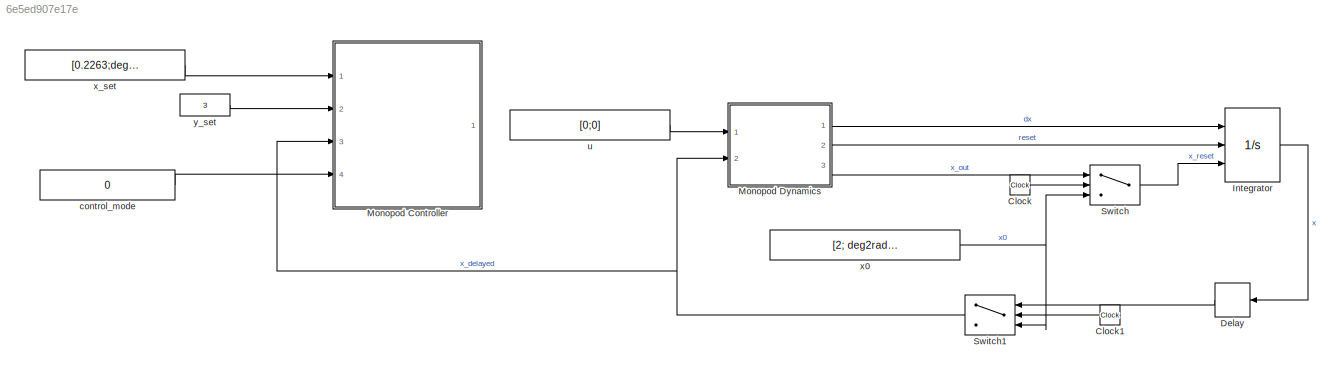
MODEL slx_6e5ed907e17e
KIND model
CONFIG AbsTol = auto
CONFIG EnableMultiTasking = off
CONFIG FixedStep = 1e-4
CONFIG MaxStep = auto
CONFIG MinStep = auto
CONFIG RelTol = 1e-3
CONFIG SampleTimeConstraint = Unconstrained
CONFIG SolverName = FixedStepAuto
CONFIG StartTime = 0.0
CONFIG StopFcn = t_sim = out.tout\nx_sim = out.logsout{1}.Values.Data\n\nmonoplot(t_sim,x_sim)
CONFIG StopTime = 10
BLOCK [Clock] Clock
BLOCK [Clock] Clock1
  NameLocation = top
BLOCK [Delay] Delay
  DelayLength = 1
  InputPortMap = u0
  NameLocation = top
  Ports = [1, 1]
BLOCK [Integrator] Integrator
  ExternalReset = level
  InitialConditionSource = external
  Ports = [3, 1]
BLOCK [ModelReference] Monopod Controller
  Commented = on
  ModelNameDialog = monopod_controller.slx
  ModelReferenceVersion = 1.133
  Ports = [4, 1]
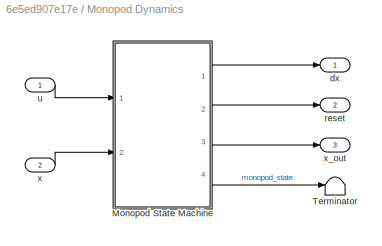
BLOCK [SubSystem] Monopod Dynamics
  Ports = [2, 3]
  RequestExecContextInheritance = off
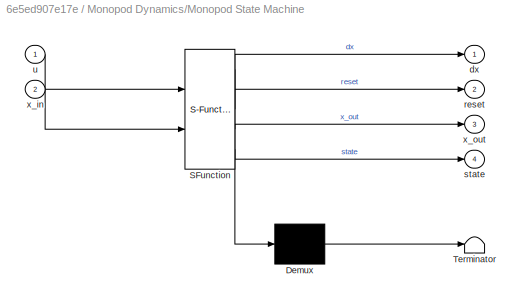
BLOCK [SubSystem] Monopod Dynamics/Monopod State Machine
  ErrorFcn = Stateflow.Translate.translate
  PermitHierarchicalResolution = ExplicitOnly
  Ports = [2, 4]
  RequestExecContextInheritance = off
  SFBlockType = Chart
  TreatAsAtomicUnit = on
BLOCK [Demux] Monopod Dynamics/Monopod State Machine/ Demux 
  Outputs = 1
  Ports = [1, 1]
BLOCK [S-Function] Monopod Dynamics/Monopod State Machine/ SFunction 
  EnableBusSupport = on
  FunctionName = sf_sfun
  Parameters = I_1,I_2,I_body,g,l_1,l_2,m_1,m_2,m_body
  PortCounts = [2 5]
  Ports = [2, 5]
  SFcnIsStateOwnerBlock = off
  SFunctionDeploymentMode = off
  Tag = Stateflow S-Function 1
BLOCK [Terminator] Monopod Dynamics/Monopod State Machine/ Terminator 
BLOCK [Outport] Monopod Dynamics/Monopod State Machine/dx
BLOCK [Outport] Monopod Dynamics/Monopod State Machine/reset
  Port = 2
BLOCK [Outport] Monopod Dynamics/Monopod State Machine/state
  Port = 4
BLOCK [Inport] Monopod Dynamics/Monopod State Machine/u
BLOCK [Inport] Monopod Dynamics/Monopod State Machine/x_in
  Port = 2
BLOCK [Outport] Monopod Dynamics/Monopod State Machine/x_out
  Port = 3
BLOCK [Terminator] Monopod Dynamics/Terminator
BLOCK [Outport] Monopod Dynamics/dx
  PortDimensions = 6
BLOCK [Outport] Monopod Dynamics/reset
  Port = 2
BLOCK [Inport] Monopod Dynamics/u
BLOCK [Inport] Monopod Dynamics/x
  Port = 2
  PortDimensions = 6
BLOCK [Outport] Monopod Dynamics/x_out
  Port = 3
BLOCK [Switch] Switch
  Criteria = u2 > Threshold
  InputSameDT = off
  SaturateOnIntegerOverflow = off
BLOCK [Switch] Switch1
  Criteria = u2 > Threshold
  InputSameDT = off
  NameLocation = top
  SaturateOnIntegerOverflow = off
BLOCK [Constant] control_mode
  Value = 0
BLOCK [Constant] u
  Value = [0;0]
BLOCK [Constant] x0
  Value = [2; deg2rad(-135); deg2rad(90); 0; 0; 0]
BLOCK [Constant] x_set
  Value = [0.2263;deg2rad(-90)]
BLOCK [Constant] y_set
  Value = 3
LINE Clock1:1 -> Switch1:2
LINE Clock:1 -> Switch:2
LINE Delay:1 -> Switch1:1
LINE Integrator:1 -> Delay:1
LINE Monopod Dynamics/Monopod State Machine:1 -> Monopod Dynamics/dx:1
LINE Monopod Dynamics/Monopod State Machine:2 -> Monopod Dynamics/reset:1
LINE Monopod Dynamics/Monopod State Machine:3 -> Monopod Dynamics/x_out:1
LINE Monopod Dynamics/Monopod State Machine:4 -> Monopod Dynamics/Terminator:1
LINE Monopod Dynamics/u:1 -> Monopod Dynamics/Monopod State Machine:1
LINE Monopod Dynamics/x:1 -> Monopod Dynamics/Monopod State Machine:2
LINE Monopod Dynamics:1 -> Integrator:1
LINE Monopod Dynamics:2 -> Integrator:2
LINE Monopod Dynamics:3 -> Switch:1
NET Switch1:1 -> Monopod Controller:3, Monopod Dynamics:2
LINE Switch:1 -> Integrator:3
LINE control_mode:1 -> Monopod Controller:4
LINE u:1 -> Monopod Dynamics:1
NET x0:1 -> Switch1:3, Switch:3
LINE x_set:1 -> Monopod Controller:1
LINE y_set:1 -> Monopod Controller:2
note: NET lines group one-source signal fan-out (src -> all destinations, sorted); 1:1 wires keep LINE
CHART Monopod Dynamics/Monopod State Machine states=3 transitions=4
  STATE_LABEL 'Flight_Phase\nentry:\n reset = false;\n state = "flight"\n x = x_in;\n y_foot = get_c(0,x);\nduring:\n x = x_in;\n dx = get_dyn_flight(0,x,u);\n y_foot = get_c(0,x);'
  STATE_LABEL 'Stance_Phase\nentry:\n state = "stance"\n dx = get_dyn_stance(0,x,u);\n lambda = get_lambda(x,u);\nduring:\n x = x_in;\n dx = get_dyn_stance(0,x,u);\n lambda = get_lambda(x,u)'
  STATE_LABEL 'Impact_Phase\nentry:\n state = "impact"\n x(4:6) = get_impact(x);\n x_out = x;'
CHART  states=0 transitions=0
